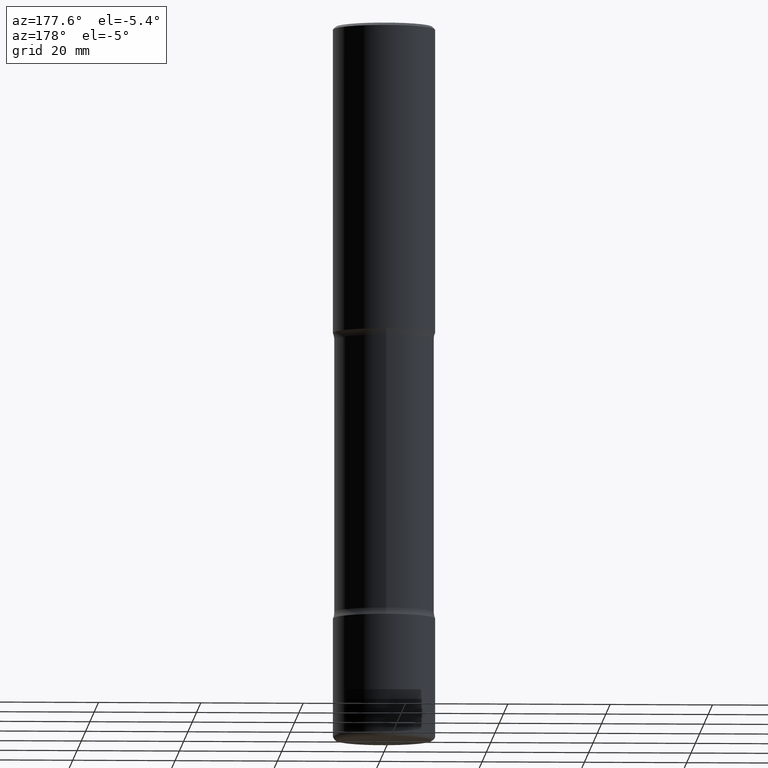
[diagram: clean part render]
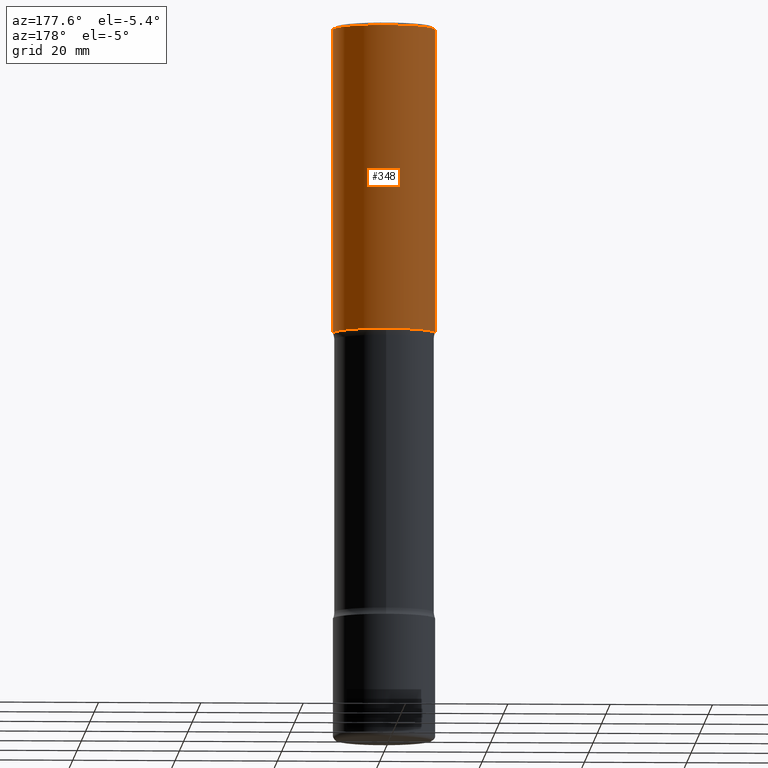
[diagram: same view with one face highlighted and labeled with its STEP entity id]
A machine part, auxiliary view. The second image highlights one B-rep face of the part: STEP entity #348.
In plain terms, the highlighted cylindrical surface (partial cylindrical patch) has radius 10 mm, axis along (-0, 0, 1).
Its self-contained STEP definition (entity closure, byte-faithful):
#7 = CIRCLE ( 'NONE', #311, 0.3937000000000002164 ) ;
#46 = CARTESIAN_POINT ( 'NONE',  ( 4.890937612370294178E-31, -6.982962677686321191E-17, -0.02000000000000008715 ) ) ;
#50 = FACE_OUTER_BOUND ( 'NONE', #285, .T. ) ;
#93 = VERTEX_POINT ( 'NONE', #481 ) ;
#97 = CARTESIAN_POINT ( 'NONE',  ( -0.3937000000000001054, 2.797406750687515181E-15, -1.936584745033357016E-29 ) ) ;
#111 = EDGE_CURVE ( 'NONE', #416, #336, #334, .T. ) ;
#132 = DIRECTION ( 'NONE',  ( 1.000000000000000000, -6.982962677686265922E-15, 0.000000000000000000 ) ) ;
#151 = CARTESIAN_POINT ( 'NONE',  ( 0.3937000000000000499, -2.770807688499515734E-15, -0.02000000000000008715 ) ) ;
#154 = DIRECTION ( 'NONE',  ( 1.000000000000000000, -6.982962677686266711E-15, 0.000000000000000000 ) ) ;
#189 = VERTEX_POINT ( 'NONE', #267 ) ;
#200 = CARTESIAN_POINT ( 'NONE',  ( 5.776686413970530874E-29, -8.247577218615279626E-15, -2.362200000000000077 ) ) ;
#204 = VECTOR ( 'NONE', #405, 39.37007874015748143 ) ;
#210 = EDGE_CURVE ( 'NONE', #189, #93, #7, .T. ) ;
#221 = CARTESIAN_POINT ( 'NONE',  ( 0.000000000000000000, 0.000000000000000000, 0.000000000000000000 ) ) ;
#243 = ORIENTED_EDGE ( 'NONE', *, *, #111, .F. ) ;
#267 = CARTESIAN_POINT ( 'NONE',  ( 0.3937000000000002164, -1.099676962482036442E-14, -2.362200000000000077 ) ) ;
#285 = EDGE_LOOP ( 'NONE', ( #379, #471, #243, #331 ) ) ;
#305 = CARTESIAN_POINT ( 'NONE',  ( -0.3937000000000000499, 2.679362779428219918E-15, -0.02000000000000008715 ) ) ;
#308 = DIRECTION ( 'NONE',  ( -2.445468806185136877E-29, 3.491481338843145188E-15, 1.000000000000000000 ) ) ;
#311 = AXIS2_PLACEMENT_3D ( 'NONE', #200, #551, #154 ) ;
#322 = EDGE_CURVE ( 'NONE', #93, #336, #450, .T. ) ;
#331 = ORIENTED_EDGE ( 'NONE', *, *, #369, .F. ) ;
#334 = CIRCLE ( 'NONE', #558, 0.3937000000000000499 ) ;
#336 = VERTEX_POINT ( 'NONE', #305 ) ;
#348 = ADVANCED_FACE ( 'NONE', ( #50 ), #487, .T. ) ;
#358 = LINE ( 'NONE', #448, #362 ) ;
#362 = VECTOR ( 'NONE', #308, 39.37007874015748143 ) ;
#369 = EDGE_CURVE ( 'NONE', #189, #416, #358, .T. ) ;
#379 = ORIENTED_EDGE ( 'NONE', *, *, #210, .T. ) ;
#392 = DIRECTION ( 'NONE',  ( -2.445468806185136597E-29, 3.491481338843145583E-15, 1.000000000000000000 ) ) ;
#398 = DIRECTION ( 'NONE',  ( 1.000000000000000000, -6.982962677686266711E-15, 4.876176775795935793E-29 ) ) ;
#405 = DIRECTION ( 'NONE',  ( -2.445468806185136877E-29, 3.491481338843145188E-15, 1.000000000000000000 ) ) ;
#416 = VERTEX_POINT ( 'NONE', #151 ) ;
#448 = CARTESIAN_POINT ( 'NONE',  ( 0.3937000000000001054, -2.749192406205084005E-15, 1.919750796630860452E-29 ) ) ;
#450 = LINE ( 'NONE', #97, #204 ) ;
#453 = DIRECTION ( 'NONE',  ( -2.445468806185136597E-29, 3.491481338843145583E-15, 1.000000000000000000 ) ) ;
#471 = ORIENTED_EDGE ( 'NONE', *, *, #322, .T. ) ;
#481 = CARTESIAN_POINT ( 'NONE',  ( -0.3937000000000002720, -1.361296672008554112E-15, -2.362200000000000077 ) ) ;
#487 = CYLINDRICAL_SURFACE ( 'NONE', #553, 0.3937000000000001054 ) ;
#551 = DIRECTION ( 'NONE',  ( -2.445468806185136597E-29, 3.491481338843145583E-15, 1.000000000000000000 ) ) ;
#553 = AXIS2_PLACEMENT_3D ( 'NONE', #221, #453, #398 ) ;
#558 = AXIS2_PLACEMENT_3D ( 'NONE', #46, #392, #132 ) ;